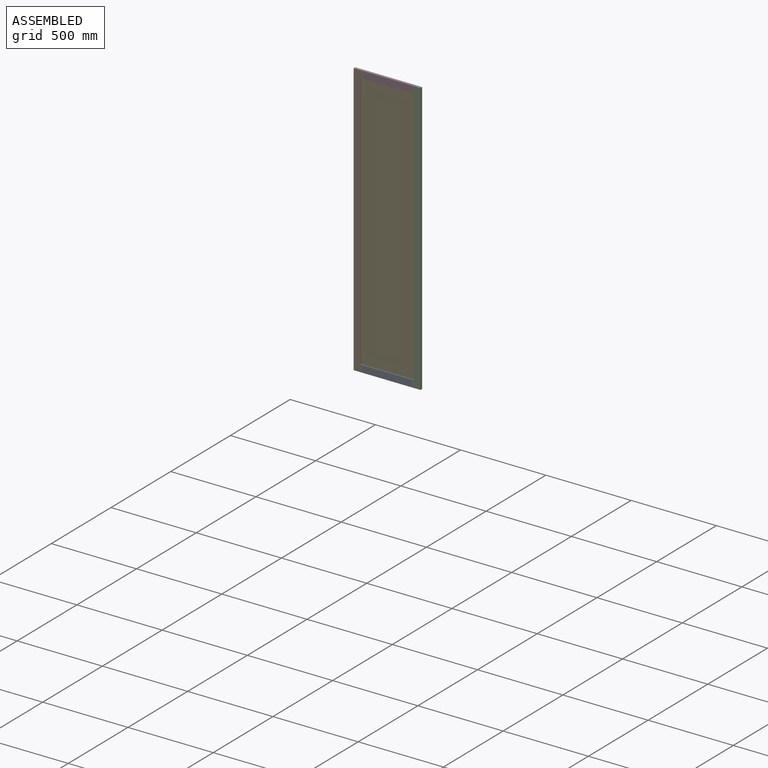
[diagram: assembled view]
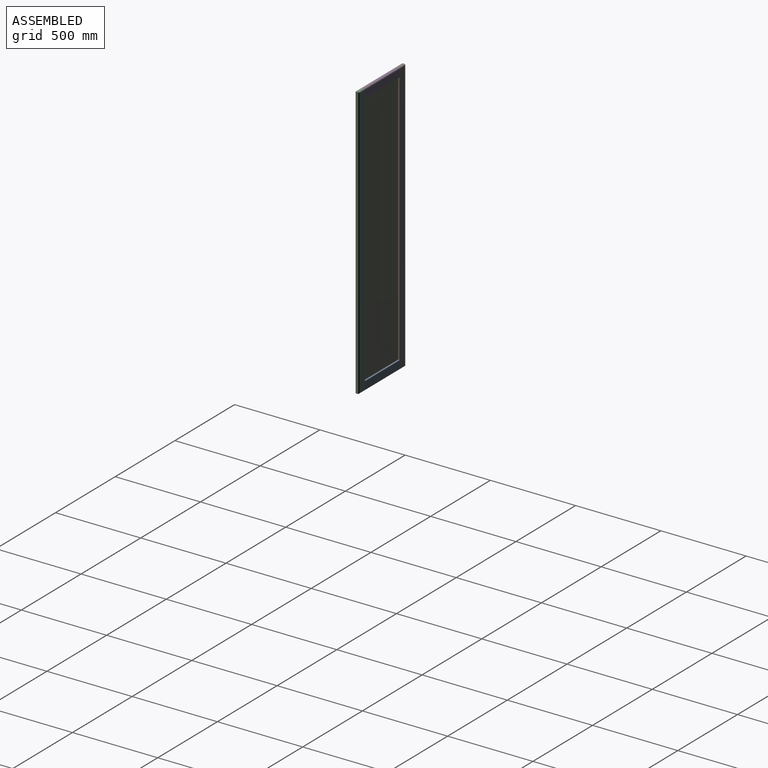
[diagram: assembled view, second angle]
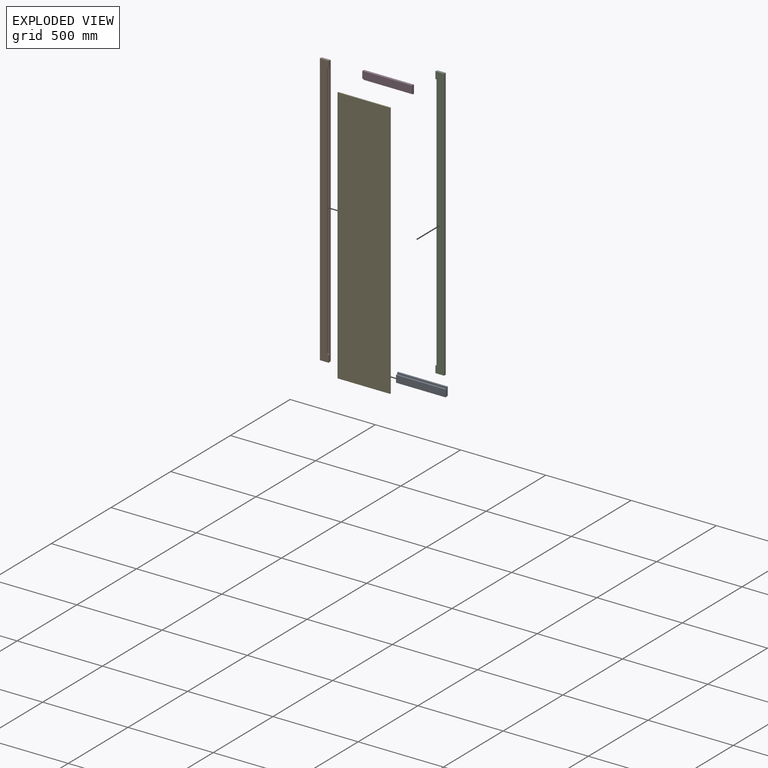
[diagram: exploded view]
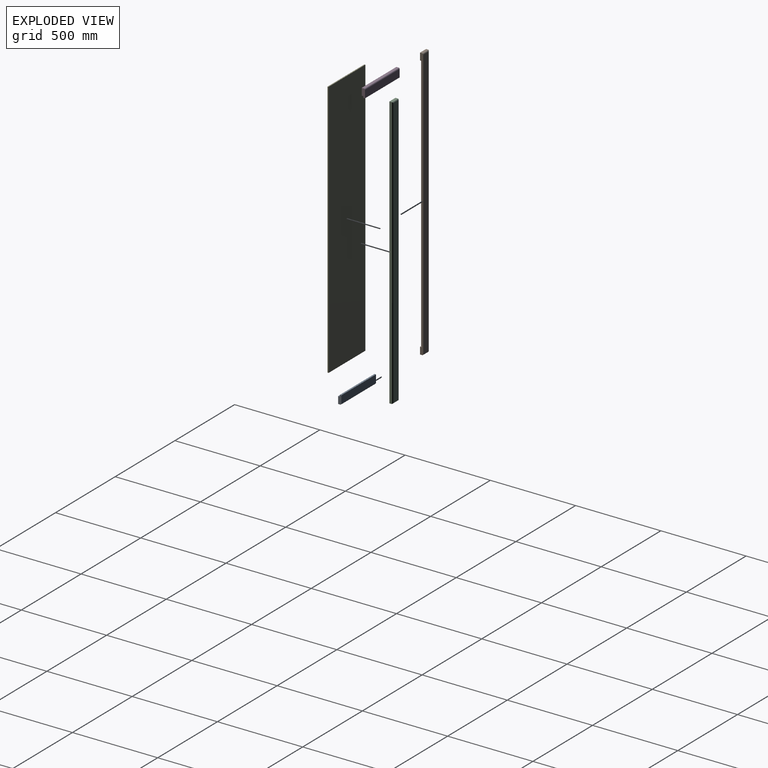
[diagram: exploded view, second angle]
ASSEMBLY  parts=5 mates=4
PART A: 9 faces, bbox 50.8x19.1x290.5 mm
  f0: plane 50.8x19.05mm, normal (0,0,1), area 868.4mm2, adj f2,f3,f4,f5,f6,f7,f8
  f1: plane 50.8x19.05mm, normal (0,0,-1), area 868.4mm2, adj f2,f3,f4,f5,f6,f7,f8
  f2: plane 290.51x12.7mm, normal (-1,0,0), area 3689.5mm2, adj f0,f1,f5,f6
  f3: plane 290.51x44.45mm, normal (0,-1,0), area 12913.3mm2, adj f0,f1,f4,f6
  f4: plane 290.51x9.53mm, normal (1,0,0), area 2767.1mm2, adj f0,f1,f3,f7
  f5: plane 290.51x41.28mm, normal (0,1,0), area 11990.9mm2, adj f0,f1,f2,f8
  f6: cylinder r=6.35mm len=290.51mm, axis (0,0,1), area 2897.7mm2, adj f0,f1,f2,f3
  f7: plane 290.51x9.53mm, normal (0,1,0), area 2767.1mm2, adj f0,f1,f4,f8
  f8: plane 290.51x9.53mm, normal (1,0,0), area 2767.1mm2, adj f0,f1,f5,f7
PART B: 13 faces, bbox 50.8x19.1x1600.2 mm
  f0: plane 1600.2x19.05mm, normal (1,0,0), area 16010.9mm2, adj f1,f3,f4,f5,f6,f7,f9,f10
  f1: plane 1600.2x50.8mm, normal (0,1,0), area 66834.5mm2, adj f0,f2,f4,f5,f9,f10,f11
  f2: plane 1600.2x12.7mm, normal (-1,0,0), area 20322.5mm2, adj f1,f4,f5,f8
  f3: plane 1587.5x44.45mm, normal (0,-1,0), area 70564.4mm2, adj f0,f6,f7,f8
  f4: plane 50.8x12.7mm, normal (0,0,1), area 645.2mm2, adj f0,f1,f2,f6
  f5: plane 50.8x12.7mm, normal (0,0,-1), area 645.2mm2, adj f0,f1,f2,f7
  f6: cylinder r=6.35mm len=50.8mm, axis (-1,0,0), area 483.7mm2, adj f0,f3,f4,f8
  f7: cylinder r=6.35mm len=50.8mm, axis (1,0,0), area 483.7mm2, adj f0,f3,f5,f8
  f8: cylinder r=6.35mm len=1600.2mm, axis (0,0,1), area 15915.3mm2, adj f2,f3,f6,f7
  f9: plane 9.53x9.53mm, normal (0,0,1), area 90.7mm2, adj f0,f1,f11,f12
  f10: plane 9.53x9.53mm, normal (0,0,-1), area 90.7mm2, adj f0,f1,f11,f12
  f11: plane 1517.65x9.53mm, normal (1,0,0), area 14455.6mm2, adj f1,f9,f10,f12
  f12: plane 1517.65x9.53mm, normal (0,1,0), area 14455.6mm2, adj f0,f9,f10,f11
PART C: same geometry as B
PART D: same geometry as A
PART E: 6 faces, bbox 308x6.4x1516.1 mm
  f0: plane 1516.06x6.35mm, normal (-1,0,0), area 9627mm2, adj f1,f3,f4,f5
  f1: plane 307.98x6.35mm, normal (0,0,-1), area 1955.6mm2, adj f0,f2,f4,f5
  f2: plane 1516.06x6.35mm, normal (1,0,0), area 9627mm2, adj f1,f3,f4,f5
  f3: plane 307.98x6.35mm, normal (0,0,1), area 1955.6mm2, adj f0,f2,f4,f5
  f4: plane 1516.06x307.98mm, normal (0,-1,0), area 466909.3mm2, adj f0,f1,f2,f3
  f5: plane 1516.06x307.98mm, normal (0,1,0), area 466909.3mm2, adj f0,f1,f2,f3
PLACE A rot(axis=(-0.71,0,-0.71),180deg) t=(-312.74,0,-800.1)mm
PLACE B rot(axis=(-1,0,0),180deg) t=(-363.54,0,800.1)mm
PLACE C rot(axis=(0,0,1),180deg) t=(28.58,0,-800.1)mm
PLACE D rot(axis=(-0.71,0,0.71),180deg) t=(-22.22,0,800.1)mm
PLACE E rot(axis=(0,0,1),180deg) t=(-13.49,-15.88,-758.03)mm
MATE fastened C.f4 <-> D.f2  axis (0,0,1) through (-22.22,-12.7,800.1)mm
MATE fastened D.f0 <-> B.f0  axis (-1,0,0) through (-312.74,-19.05,800.1)mm
MATE fastened B.f0 <-> A.f1  axis (1,0,0) through (-312.74,-19.05,-800.1)mm
MATE fastened E.f4 <-> C.f12  axis (0,1,0) through (-13.49,-9.53,758.03)mm
